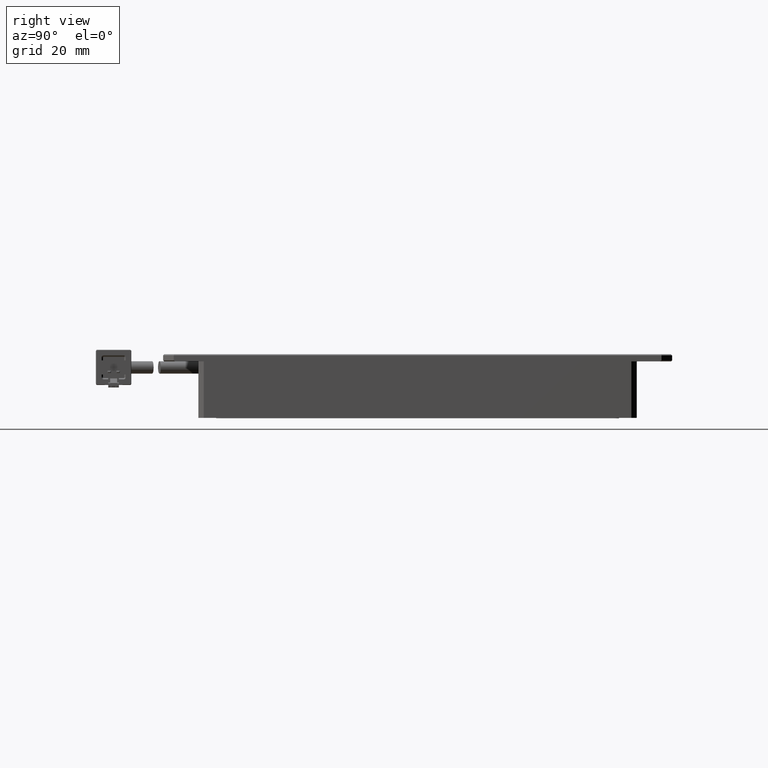
[diagram: clean part render]
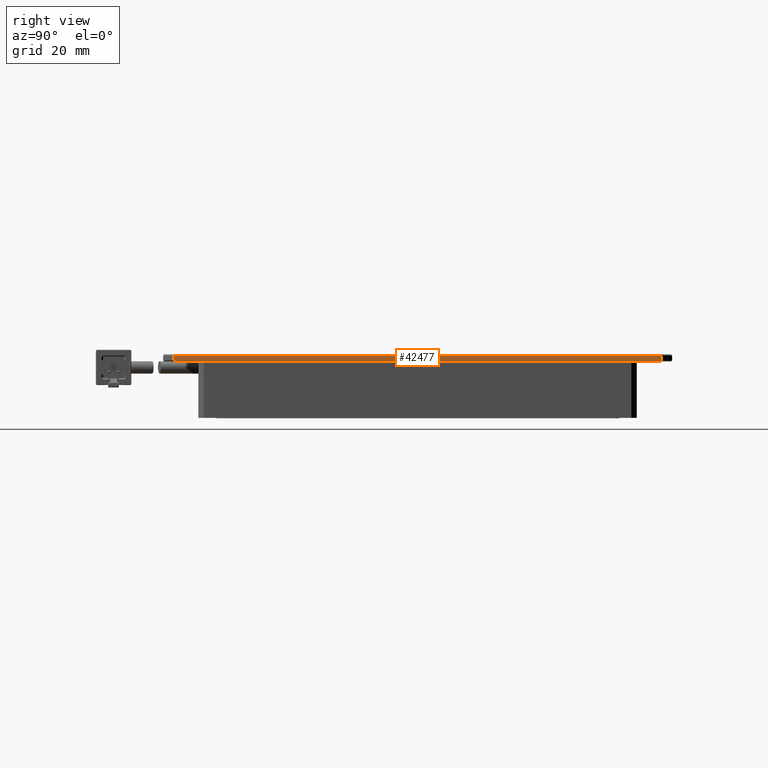
[diagram: same view with one face highlighted and labeled with its STEP entity id]
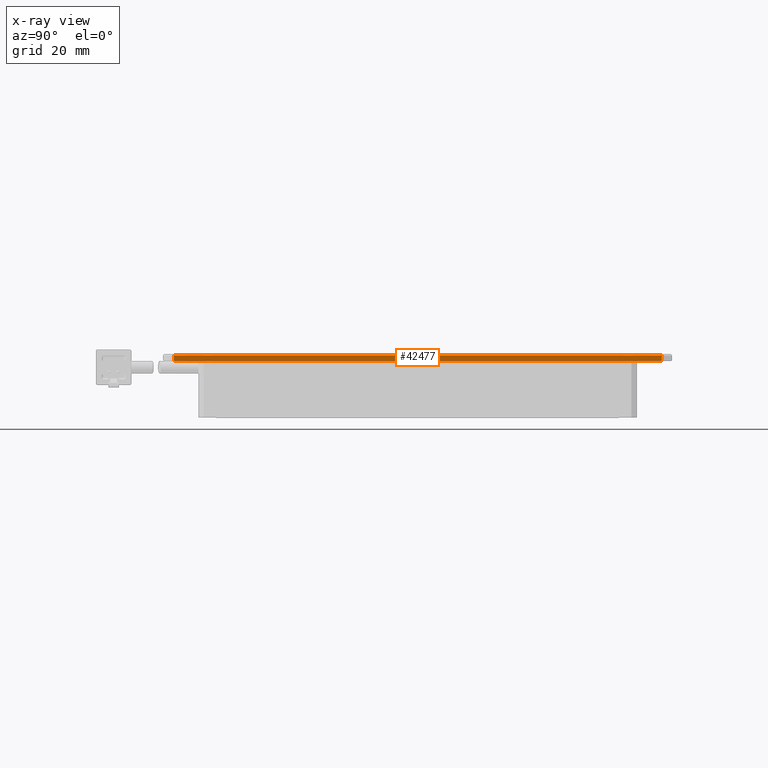
[diagram: x-ray of the same camera — body ghosted, the highlighted face saturated]
A machine part, right view. The second image highlights one B-rep face of the part: STEP entity #42477.
The next image is the same camera in x-ray: the body ghosted, the highlighted face saturated — about 0% of this face is hidden behind the body in this view.
In plain terms, the highlighted planar face has unit normal (-1, 0, 0).
Its self-contained STEP definition (entity closure, byte-faithful):
#657 = CARTESIAN_POINT ( 'NONE',  ( 62.64490263459336500, 79.88965253913721700, 15.69999999998360900 ) ) ;
#691 = EDGE_CURVE ( 'NONE', #94521, #20062, #74712, .T. ) ;
#3053 = VERTEX_POINT ( 'NONE', #10081 ) ;
#7296 = VECTOR ( 'NONE', #55586, 1000.000000000000000 ) ;
#8238 = ORIENTED_EDGE ( 'NONE', *, *, #71223, .F. ) ;
#9023 = EDGE_CURVE ( 'NONE', #3053, #54883, #66382, .T. ) ;
#10081 = CARTESIAN_POINT ( 'NONE',  ( 62.64490263459336500, -57.68608339215082000, 13.99999999998362700 ) ) ;
#10410 = EDGE_CURVE ( 'NONE', #54883, #94521, #23150, .T. ) ;
#16720 = ORIENTED_EDGE ( 'NONE', *, *, #26895, .F. ) ;
#18965 = DIRECTION ( 'NONE',  ( -0.0000000000000000000, -0.8164965809277133800, -0.5773502691896437200 ) ) ;
#20062 = VERTEX_POINT ( 'NONE', #657 ) ;
#22349 = VECTOR ( 'NONE', #18965, 1000.000000000000000 ) ;
#23150 = LINE ( 'NONE', #31880, #43877 ) ;
#23739 = VECTOR ( 'NONE', #79296, 1000.000000000000000 ) ;
#24010 = ORIENTED_EDGE ( 'NONE', *, *, #51638, .F. ) ;
#26895 = EDGE_CURVE ( 'NONE', #72472, #51808, #43077, .T. ) ;
#31880 = CARTESIAN_POINT ( 'NONE',  ( 62.64490263459336500, -58.11034746086279100, 15.99999999998363100 ) ) ;
#33150 = VECTOR ( 'NONE', #86944, 1000.000000000000000 ) ;
#34636 = CARTESIAN_POINT ( 'NONE',  ( 62.64490263459336500, 122.6068098266613000, 44.50559159100561900 ) ) ;
#34937 = ORIENTED_EDGE ( 'NONE', *, *, #691, .F. ) ;
#37559 = PLANE ( 'NONE',  #58748 ) ;
#38051 = FACE_OUTER_BOUND ( 'NONE', #50888, .T. ) ;
#42477 = ADVANCED_FACE ( 'NONE', ( #38051 ), #37559, .F. ) ;
#42608 = CARTESIAN_POINT ( 'NONE',  ( 62.64490263459336500, -58.11034746086281900, 15.69999999998360500 ) ) ;
#43077 = LINE ( 'NONE', #34636, #22349 ) ;
#43877 = VECTOR ( 'NONE', #70512, 1000.000000000000000 ) ;
#45399 = DIRECTION ( 'NONE',  ( -1.000000000000000000, 0.0000000000000000000, 0.0000000000000000000 ) ) ;
#47729 = CARTESIAN_POINT ( 'NONE',  ( 62.64490263459336500, 79.88965253913721700, 15.99999999998363100 ) ) ;
#48268 = ORIENTED_EDGE ( 'NONE', *, *, #10410, .F. ) ;
#50888 = EDGE_LOOP ( 'NONE', ( #52316, #8238, #16720, #24010, #34937, #48268 ) ) ;
#51638 = EDGE_CURVE ( 'NONE', #20062, #72472, #67124, .T. ) ;
#51808 = VERTEX_POINT ( 'NONE', #65440 ) ;
#52316 = ORIENTED_EDGE ( 'NONE', *, *, #9023, .F. ) ;
#54883 = VERTEX_POINT ( 'NONE', #83985 ) ;
#55586 = DIRECTION ( 'NONE',  ( -0.0000000000000000000, -0.0000000000000000000, -1.000000000000000000 ) ) ;
#58748 = AXIS2_PLACEMENT_3D ( 'NONE', #92232, #45399, #100151 ) ;
#63958 = VECTOR ( 'NONE', #80306, 1000.000000000000100 ) ;
#64259 = CARTESIAN_POINT ( 'NONE',  ( 62.64490263459339300, -57.68608339215082700, 13.99999999998362900 ) ) ;
#65440 = CARTESIAN_POINT ( 'NONE',  ( 62.64490263459336500, 79.46538847042533900, 13.99999999998362900 ) ) ;
#66382 = LINE ( 'NONE', #64259, #63958 ) ;
#67124 = LINE ( 'NONE', #47729, #7296 ) ;
#70512 = DIRECTION ( 'NONE',  ( 0.0000000000000000000, 0.0000000000000000000, 1.000000000000000000 ) ) ;
#70794 = CARTESIAN_POINT ( 'NONE',  ( 62.64490263459336500, 82.88965253913721700, 13.99999999998362900 ) ) ;
#71223 = EDGE_CURVE ( 'NONE', #51808, #3053, #86035, .T. ) ;
#72472 = VERTEX_POINT ( 'NONE', #88552 ) ;
#74712 = LINE ( 'NONE', #87498, #33150 ) ;
#79296 = DIRECTION ( 'NONE',  ( -0.0000000000000000000, -1.000000000000000000, -0.0000000000000000000 ) ) ;
#80306 = DIRECTION ( 'NONE',  ( -5.341563017731868900E-014, -0.8164965809277519000, 0.5773502691895889800 ) ) ;
#83985 = CARTESIAN_POINT ( 'NONE',  ( 62.64490263459336500, -58.11034746086279100, 14.29999999998362100 ) ) ;
#86035 = LINE ( 'NONE', #70794, #23739 ) ;
#86944 = DIRECTION ( 'NONE',  ( 0.0000000000000000000, 1.000000000000000000, -0.0000000000000000000 ) ) ;
#87498 = CARTESIAN_POINT ( 'NONE',  ( 62.64490263459336500, -61.11034746086279800, 15.69999999998360900 ) ) ;
#88552 = CARTESIAN_POINT ( 'NONE',  ( 62.64490263459336500, 79.88965253913721700, 14.29999999998359300 ) ) ;
#92232 = CARTESIAN_POINT ( 'NONE',  ( 62.64490263459336500, -61.11034746086279800, 15.99999999998363100 ) ) ;
#94521 = VERTEX_POINT ( 'NONE', #42608 ) ;
#100151 = DIRECTION ( 'NONE',  ( 0.0000000000000000000, 0.0000000000000000000, 1.000000000000000000 ) ) ;